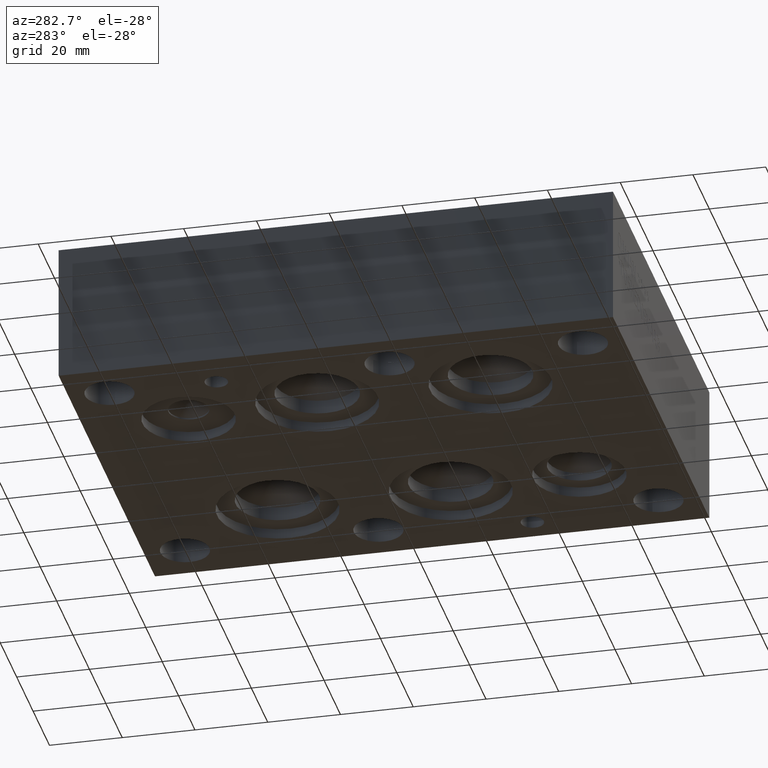
[diagram: clean part render]
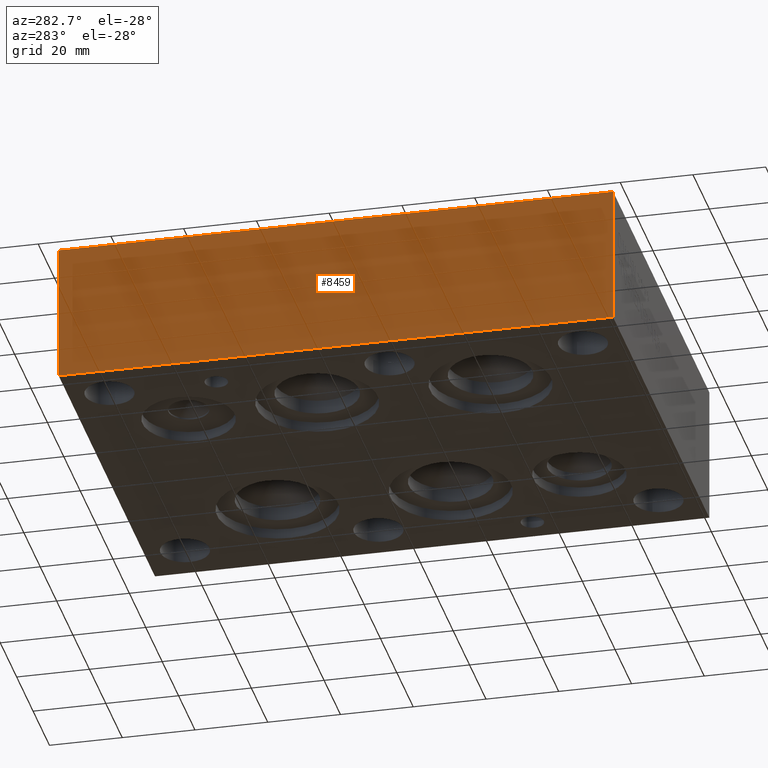
[diagram: same view with one face highlighted and labeled with its STEP entity id]
A machine part, auxiliary view. The second image highlights one B-rep face of the part: STEP entity #8459.
In plain terms, the highlighted planar face has unit normal (-1, 0, 0).
Its self-contained STEP definition (entity closure, byte-faithful):
#989=FACE_OUTER_BOUND('',#1497,.T.);
#1497=EDGE_LOOP('',(#7360,#7361,#7362,#7363));
#1898=LINE('',#11583,#2746);
#2322=LINE('',#14154,#3170);
#2361=LINE('',#14362,#3209);
#2362=LINE('',#14363,#3210);
#2746=VECTOR('',#9577,10.);
#3170=VECTOR('',#10413,10.);
#3209=VECTOR('',#10662,10.);
#3210=VECTOR('',#10663,10.);
#3476=VERTEX_POINT('',#11576);
#3479=VERTEX_POINT('',#11581);
#3914=VERTEX_POINT('',#14153);
#3978=VERTEX_POINT('',#14361);
#4376=EDGE_CURVE('',#3476,#3479,#1898,.T.);
#5018=EDGE_CURVE('',#3914,#3476,#2322,.T.);
#5115=EDGE_CURVE('',#3978,#3479,#2361,.T.);
#5116=EDGE_CURVE('',#3914,#3978,#2362,.T.);
#7360=ORIENTED_EDGE('',*,*,#5018,.T.);
#7361=ORIENTED_EDGE('',*,*,#4376,.T.);
#7362=ORIENTED_EDGE('',*,*,#5115,.F.);
#7363=ORIENTED_EDGE('',*,*,#5116,.F.);
#7675=PLANE('',#8924);
#8459=ADVANCED_FACE('',(#989),#7675,.T.);
#8924=AXIS2_PLACEMENT_3D('',#14360,#10660,#10661);
#9577=DIRECTION('',(0.,0.,1.));
#10413=DIRECTION('',(0.,-1.,0.));
#10660=DIRECTION('center_axis',(-1.,0.,0.));
#10661=DIRECTION('ref_axis',(0.,-1.,0.));
#10662=DIRECTION('',(0.,-1.,0.));
#10663=DIRECTION('',(0.,0.,1.));
#11576=CARTESIAN_POINT('',(0.,0.,0.));
#11581=CARTESIAN_POINT('',(0.,0.,38.1));
#11583=CARTESIAN_POINT('',(0.,0.,0.));
#14153=CARTESIAN_POINT('',(0.,152.4,0.));
#14154=CARTESIAN_POINT('',(0.,152.4,0.));
#14360=CARTESIAN_POINT('Origin',(0.,152.4,0.));
#14361=CARTESIAN_POINT('',(0.,152.4,38.1));
#14362=CARTESIAN_POINT('',(0.,152.4,38.1));
#14363=CARTESIAN_POINT('',(0.,152.4,0.));